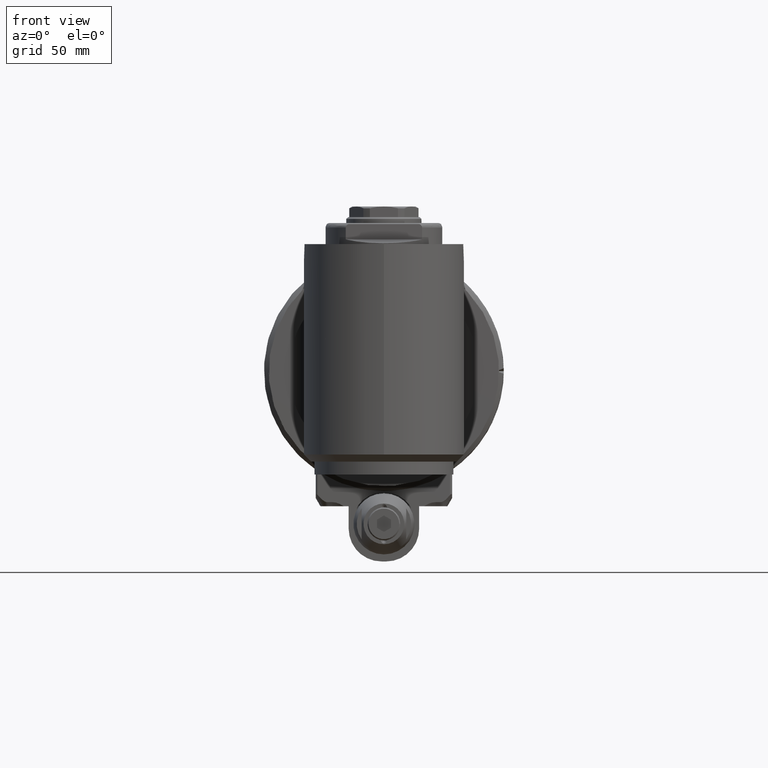
[diagram: clean part render]
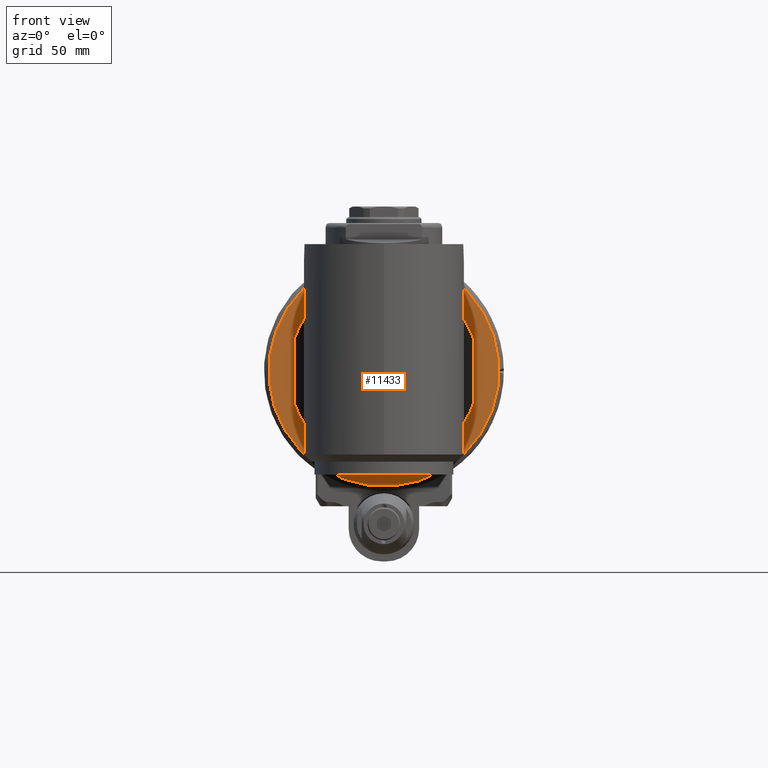
[diagram: same view with one face highlighted and labeled with its STEP entity id]
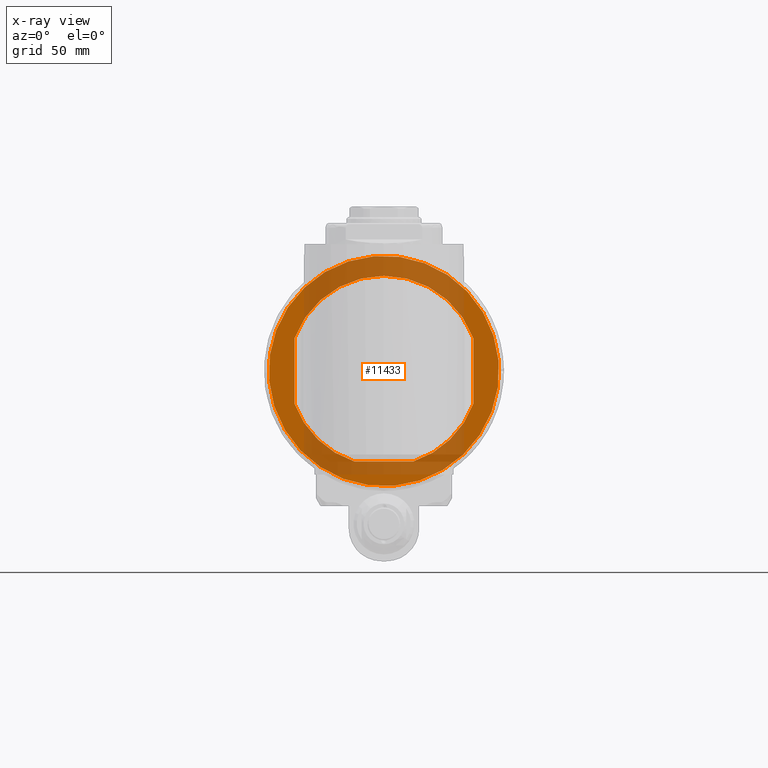
[diagram: x-ray of the same camera — body ghosted, the highlighted face saturated]
A machine part, front view. The second image highlights one B-rep face of the part: STEP entity #11433.
The next image is the same camera in x-ray: the body ghosted, the highlighted face saturated — about 49% of this face is hidden behind the body in this view.
In plain terms, the highlighted planar face has unit normal (0, -1, -0).
Its self-contained STEP definition (entity closure, byte-faithful):
#589=LINE('',#17578,#1363);
#590=LINE('',#17580,#1364);
#591=LINE('',#17583,#1365);
#1363=VECTOR('',#13796,28.01785145224);
#1364=VECTOR('',#13797,25.13961017995);
#1365=VECTOR('',#13800,28.01785145224);
#2323=FACE_BOUND('',#3204,.T.);
#2461=FACE_OUTER_BOUND('',#3203,.T.);
#3203=EDGE_LOOP('',(#7720));
#3204=EDGE_LOOP('',(#7721,#7722,#7723,#7724,#7725,#7726));
#4072=CIRCLE('',#12263,40.5);
#4073=CIRCLE('',#12265,49.);
#4074=CIRCLE('',#12266,40.5);
#4075=CIRCLE('',#12267,40.5);
#4812=VERTEX_POINT('',#17552);
#4813=VERTEX_POINT('',#17553);
#4814=VERTEX_POINT('',#17573);
#4815=VERTEX_POINT('',#17575);
#4816=VERTEX_POINT('',#17576);
#4817=VERTEX_POINT('',#17579);
#4818=VERTEX_POINT('',#17581);
#5963=EDGE_CURVE('',#4812,#4813,#4072,.T.);
#5966=EDGE_CURVE('',#4814,#4814,#4073,.T.);
#5967=EDGE_CURVE('',#4815,#4816,#4074,.T.);
#5968=EDGE_CURVE('',#4812,#4816,#589,.T.);
#5969=EDGE_CURVE('',#4813,#4817,#590,.T.);
#5970=EDGE_CURVE('',#4817,#4818,#4075,.T.);
#5971=EDGE_CURVE('',#4815,#4818,#591,.T.);
#7720=ORIENTED_EDGE('',*,*,#5966,.T.);
#7721=ORIENTED_EDGE('',*,*,#5967,.T.);
#7722=ORIENTED_EDGE('',*,*,#5968,.F.);
#7723=ORIENTED_EDGE('',*,*,#5963,.T.);
#7724=ORIENTED_EDGE('',*,*,#5969,.T.);
#7725=ORIENTED_EDGE('',*,*,#5970,.T.);
#7726=ORIENTED_EDGE('',*,*,#5971,.F.);
#11117=PLANE('',#12264);
#11433=ADVANCED_FACE('',(#2461,#2323),#11117,.T.);
#12263=AXIS2_PLACEMENT_3D('',#17554,#13787,#13788);
#12264=AXIS2_PLACEMENT_3D('',#17572,#13790,#13791);
#12265=AXIS2_PLACEMENT_3D('',#17574,#13792,#13793);
#12266=AXIS2_PLACEMENT_3D('',#17577,#13794,#13795);
#12267=AXIS2_PLACEMENT_3D('',#17582,#13798,#13799);
#13787=DIRECTION('center_axis',(0.,1.,0.));
#13788=DIRECTION('ref_axis',(-0.345899400644989,0.,-0.93827160493827));
#13790=DIRECTION('center_axis',(0.,-1.,0.));
#13791=DIRECTION('ref_axis',(-1.,0.,0.));
#13792=DIRECTION('center_axis',(0.,-1.,0.));
#13793=DIRECTION('ref_axis',(-0.0871557427476639,0.,0.996194698091745));
#13794=DIRECTION('center_axis',(0.,1.,0.));
#13795=DIRECTION('ref_axis',(0.345899400644989,0.,0.93827160493827));
#13796=DIRECTION('',(1.,0.,0.));
#13797=DIRECTION('',(0.,0.,1.));
#13798=DIRECTION('center_axis',(0.,1.,0.));
#13799=DIRECTION('ref_axis',(-0.950617283950615,0.,0.310365557777205));
#13800=DIRECTION('',(-1.,0.,0.));
#17552=CARTESIAN_POINT('',(-24.8488839382,40.5,-38.));
#17553=CARTESIAN_POINT('',(-49.33995821208,40.5,-12.56980508998));
#17554=CARTESIAN_POINT('Origin',(-10.83995821208,40.5,0.));
#17572=CARTESIAN_POINT('Origin',(-10.83995821208,40.5,0.));
#17573=CARTESIAN_POINT('',(-15.11058960672,40.5,48.8135402065));
#17574=CARTESIAN_POINT('Origin',(-10.83995821208,40.5,0.));
#17575=CARTESIAN_POINT('',(3.16896751404,40.5,38.));
#17576=CARTESIAN_POINT('',(3.168967514039,40.5,-38.));
#17577=CARTESIAN_POINT('Origin',(-10.83995821208,40.5,0.));
#17578=CARTESIAN_POINT('',(-24.8488839382,40.5,-38.));
#17579=CARTESIAN_POINT('',(-49.33995821208,40.5,12.56980508998));
#17580=CARTESIAN_POINT('',(-49.33995821208,40.5,-12.56980508998));
#17581=CARTESIAN_POINT('',(-24.8488839382,40.5,38.));
#17582=CARTESIAN_POINT('Origin',(-10.83995821208,40.5,0.));
#17583=CARTESIAN_POINT('',(3.16896751404,40.5,38.));